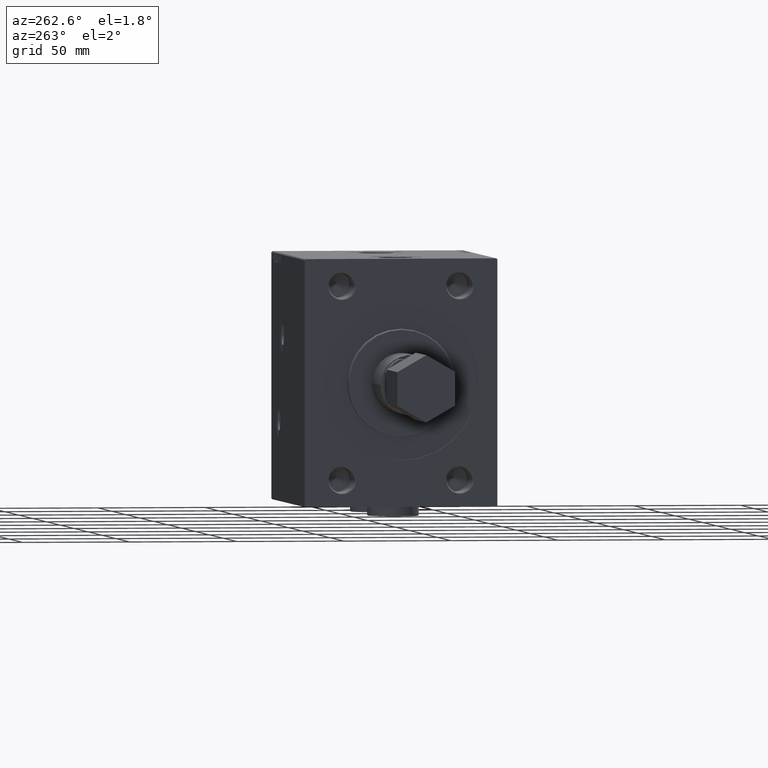
[diagram: clean part render]
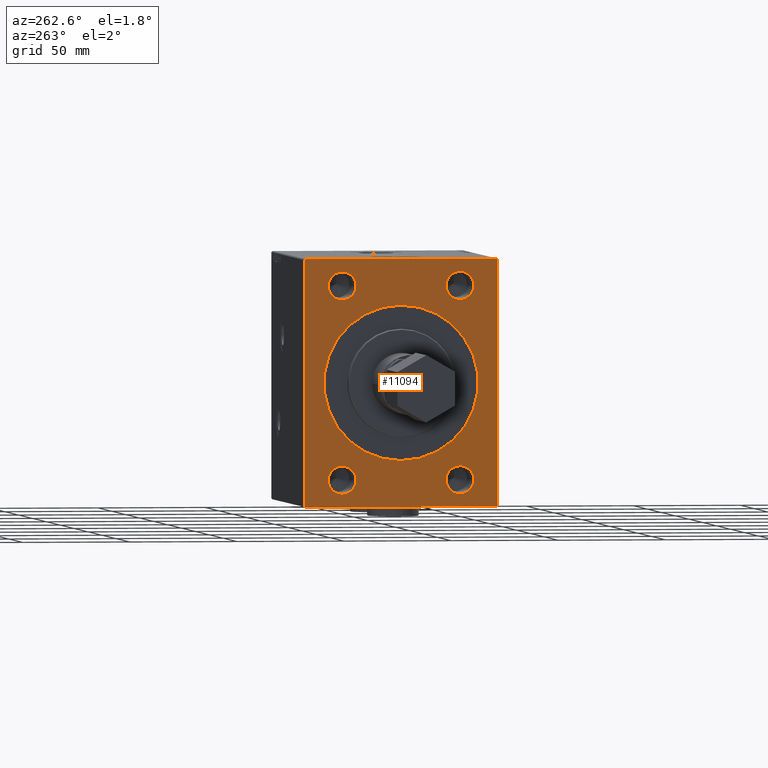
[diagram: same view with one face highlighted and labeled with its STEP entity id]
A machine part, auxiliary view. The second image highlights one B-rep face of the part: STEP entity #11094.
In plain terms, the highlighted planar face has unit normal (-1, 0, 0).
Its self-contained STEP definition (entity closure, byte-faithful):
#583 = EDGE_LOOP ( 'NONE', ( #24999, #40530, #45335, #30705, #43411, #26980, #19381, #1732 ) ) ;
#952 = DIRECTION ( 'NONE',  ( 0.000000000000000000, 0.000000000000000000, -1.000000000000000000 ) ) ;
#1057 = CARTESIAN_POINT ( 'NONE',  ( 119.7000000000000028, -27.50000000000000000, -45.00000000000000000 ) ) ;
#1490 = DIRECTION ( 'NONE',  ( 0.000000000000000000, -1.000000000000000000, -1.541976423090495633E-16 ) ) ;
#1493 = VERTEX_POINT ( 'NONE', #17157 ) ;
#1732 = ORIENTED_EDGE ( 'NONE', *, *, #10821, .T. ) ;
#1862 = CIRCLE ( 'NONE', #19166, 6.499999999999950262 ) ;
#1934 = FACE_BOUND ( 'NONE', #21140, .T. ) ;
#2305 = DIRECTION ( 'NONE',  ( 1.000000000000000000, -0.000000000000000000, -0.000000000000000000 ) ) ;
#2330 = CIRCLE ( 'NONE', #21236, 6.499999999999950262 ) ;
#2425 = CIRCLE ( 'NONE', #6381, 6.499999999999950262 ) ;
#2454 = ORIENTED_EDGE ( 'NONE', *, *, #14264, .F. ) ;
#2711 = EDGE_LOOP ( 'NONE', ( #16657, #13394 ) ) ;
#2944 = AXIS2_PLACEMENT_3D ( 'NONE', #1057, #15618, #11432 ) ;
#3553 = AXIS2_PLACEMENT_3D ( 'NONE', #26866, #34504, #952 ) ;
#3835 = VECTOR ( 'NONE', #1490, 1000.000000000000000 ) ;
#4262 = CARTESIAN_POINT ( 'NONE',  ( 119.7000000000000028, 27.50000000000000000, 51.49999999999994316 ) ) ;
#4370 = EDGE_CURVE ( 'NONE', #18049, #39554, #38457, .T. ) ;
#4397 = VECTOR ( 'NONE', #27446, 1000.000000000000000 ) ;
#4408 = EDGE_CURVE ( 'NONE', #1493, #33120, #27836, .T. ) ;
#4543 = EDGE_LOOP ( 'NONE', ( #39542, #22067 ) ) ;
#4545 = VERTEX_POINT ( 'NONE', #45062 ) ;
#4891 = DIRECTION ( 'NONE',  ( -0.000000000000000000, 0.7071067811865474617, -0.7071067811865474617 ) ) ;
#5547 = VECTOR ( 'NONE', #36978, 999.9999999999998863 ) ;
#5584 = DIRECTION ( 'NONE',  ( 1.000000000000000000, 0.000000000000000000, 0.000000000000000000 ) ) ;
#5653 = FACE_BOUND ( 'NONE', #4543, .T. ) ;
#5699 = VERTEX_POINT ( 'NONE', #41560 ) ;
#5712 = EDGE_LOOP ( 'NONE', ( #34544, #45901 ) ) ;
#6381 = AXIS2_PLACEMENT_3D ( 'NONE', #12585, #23693, #11845 ) ;
#6382 = CARTESIAN_POINT ( 'NONE',  ( 119.7000000000000028, 0.000000000000000000, 0.000000000000000000 ) ) ;
#6600 = VERTEX_POINT ( 'NONE', #30133 ) ;
#7234 = DIRECTION ( 'NONE',  ( 1.000000000000000000, -0.000000000000000000, -0.000000000000000000 ) ) ;
#7793 = AXIS2_PLACEMENT_3D ( 'NONE', #41899, #27335, #19913 ) ;
#8276 = EDGE_CURVE ( 'NONE', #34200, #6600, #45492, .T. ) ;
#8322 = CARTESIAN_POINT ( 'NONE',  ( 119.7000000000000028, 27.50000000000000000, -38.50000000000005684 ) ) ;
#8660 = CARTESIAN_POINT ( 'NONE',  ( 119.7000000000000028, 44.99999999999998579, 57.50000000000000000 ) ) ;
#9492 = VECTOR ( 'NONE', #4891, 1000.000000000000114 ) ;
#9706 = VERTEX_POINT ( 'NONE', #29413 ) ;
#10073 = FACE_OUTER_BOUND ( 'NONE', #583, .T. ) ;
#10821 = EDGE_CURVE ( 'NONE', #33120, #12278, #45369, .T. ) ;
#10854 = CARTESIAN_POINT ( 'NONE',  ( 119.7000000000000028, 51.00000000000000000, 51.00000000000000000 ) ) ;
#10923 = DIRECTION ( 'NONE',  ( 0.000000000000000000, 0.000000000000000000, -1.000000000000000000 ) ) ;
#11094 = ADVANCED_FACE ( 'NONE', ( #24398, #39450, #13769, #1934, #5653, #10073 ), #25121, .T. ) ;
#11421 = CARTESIAN_POINT ( 'NONE',  ( 119.7000000000000028, -27.50000000000000000, -51.49999999999995026 ) ) ;
#11432 = DIRECTION ( 'NONE',  ( 0.000000000000000000, 0.000000000000000000, -1.000000000000000000 ) ) ;
#11845 = DIRECTION ( 'NONE',  ( 0.000000000000000000, 0.000000000000000000, -1.000000000000000000 ) ) ;
#12278 = VERTEX_POINT ( 'NONE', #47275 ) ;
#12541 = CIRCLE ( 'NONE', #44054, 36.00000000000000000 ) ;
#12544 = EDGE_CURVE ( 'NONE', #5699, #28756, #2330, .T. ) ;
#12585 = CARTESIAN_POINT ( 'NONE',  ( 119.7000000000000028, -27.50000000000000000, 45.00000000000000000 ) ) ;
#12877 = CARTESIAN_POINT ( 'NONE',  ( 119.7000000000000028, -45.00000000000000000, -57.50000000000001421 ) ) ;
#13050 = DIRECTION ( 'NONE',  ( 0.000000000000000000, 0.000000000000000000, -1.000000000000000000 ) ) ;
#13124 = VECTOR ( 'NONE', #16234, 1000.000000000000000 ) ;
#13394 = ORIENTED_EDGE ( 'NONE', *, *, #44739, .F. ) ;
#13769 = FACE_BOUND ( 'NONE', #2711, .T. ) ;
#14222 = EDGE_CURVE ( 'NONE', #42868, #1493, #37219, .T. ) ;
#14264 = EDGE_CURVE ( 'NONE', #22179, #37176, #18899, .T. ) ;
#14313 = EDGE_CURVE ( 'NONE', #39554, #29517, #19674, .T. ) ;
#14772 = EDGE_CURVE ( 'NONE', #28756, #5699, #26805, .T. ) ;
#15225 = AXIS2_PLACEMENT_3D ( 'NONE', #33565, #37508, #19475 ) ;
#15618 = DIRECTION ( 'NONE',  ( 1.000000000000000000, -0.000000000000000000, -0.000000000000000000 ) ) ;
#15782 = DIRECTION ( 'NONE',  ( 1.000000000000000000, 0.000000000000000000, 0.000000000000000000 ) ) ;
#15919 = EDGE_CURVE ( 'NONE', #6600, #34200, #12541, .T. ) ;
#16234 = DIRECTION ( 'NONE',  ( 0.000000000000000000, 0.000000000000000000, -1.000000000000000000 ) ) ;
#16657 = ORIENTED_EDGE ( 'NONE', *, *, #30052, .F. ) ;
#16712 = CARTESIAN_POINT ( 'NONE',  ( 119.7000000000000028, 45.00000000000000000, -57.50000000000001421 ) ) ;
#16965 = DIRECTION ( 'NONE',  ( 1.000000000000000000, 0.000000000000000000, 0.000000000000000000 ) ) ;
#17157 = CARTESIAN_POINT ( 'NONE',  ( 119.7000000000000028, 45.00000000000000000, -57.00000000000001421 ) ) ;
#17696 = DIRECTION ( 'NONE',  ( 0.000000000000000000, 0.000000000000000000, -1.000000000000000000 ) ) ;
#18049 = VERTEX_POINT ( 'NONE', #18794 ) ;
#18376 = LINE ( 'NONE', #26282, #46153 ) ;
#18794 = CARTESIAN_POINT ( 'NONE',  ( 119.7000000000000028, -45.00000000000000000, 57.00000000000001421 ) ) ;
#18899 = CIRCLE ( 'NONE', #7793, 6.499999999999950262 ) ;
#19166 = AXIS2_PLACEMENT_3D ( 'NONE', #36099, #2305, #45187 ) ;
#19323 = EDGE_CURVE ( 'NONE', #9706, #43589, #2425, .T. ) ;
#19381 = ORIENTED_EDGE ( 'NONE', *, *, #4408, .T. ) ;
#19475 = DIRECTION ( 'NONE',  ( 0.000000000000000000, 0.000000000000000000, -1.000000000000000000 ) ) ;
#19674 = LINE ( 'NONE', #42142, #9492 ) ;
#19913 = DIRECTION ( 'NONE',  ( 0.000000000000000000, 0.000000000000000000, -1.000000000000000000 ) ) ;
#21005 = LINE ( 'NONE', #12877, #4397 ) ;
#21140 = EDGE_LOOP ( 'NONE', ( #42340, #36752 ) ) ;
#21236 = AXIS2_PLACEMENT_3D ( 'NONE', #44235, #7234, #10923 ) ;
#21577 = CARTESIAN_POINT ( 'NONE',  ( 119.7000000000000028, 44.99999999999998579, 57.00000000000000000 ) ) ;
#21925 = CARTESIAN_POINT ( 'NONE',  ( 119.7000000000000028, 50.99999999999938893, -51.00000000000080291 ) ) ;
#21937 = EDGE_LOOP ( 'NONE', ( #30988, #2454 ) ) ;
#22067 = ORIENTED_EDGE ( 'NONE', *, *, #15919, .F. ) ;
#22179 = VERTEX_POINT ( 'NONE', #24861 ) ;
#22956 = VERTEX_POINT ( 'NONE', #46000 ) ;
#23693 = DIRECTION ( 'NONE',  ( 1.000000000000000000, -0.000000000000000000, -0.000000000000000000 ) ) ;
#23702 = LINE ( 'NONE', #8660, #3835 ) ;
#24398 = FACE_BOUND ( 'NONE', #21937, .T. ) ;
#24861 = CARTESIAN_POINT ( 'NONE',  ( 119.7000000000000028, 27.50000000000000000, 38.50000000000005684 ) ) ;
#24999 = ORIENTED_EDGE ( 'NONE', *, *, #46467, .T. ) ;
#25121 = PLANE ( 'NONE',  #47960 ) ;
#25553 = DIRECTION ( 'NONE',  ( 0.000000000000000000, -0.7071067811865474617, -0.7071067811865474617 ) ) ;
#26151 = EDGE_CURVE ( 'NONE', #37176, #22179, #1862, .T. ) ;
#26282 = CARTESIAN_POINT ( 'NONE',  ( 119.7000000000000028, -51.00000000000000711, 51.00000000000000711 ) ) ;
#26688 = AXIS2_PLACEMENT_3D ( 'NONE', #46719, #46485, #28467 ) ;
#26805 = CIRCLE ( 'NONE', #26688, 6.499999999999950262 ) ;
#26866 = CARTESIAN_POINT ( 'NONE',  ( 119.7000000000000028, -27.50000000000000000, 45.00000000000000000 ) ) ;
#26980 = ORIENTED_EDGE ( 'NONE', *, *, #14222, .T. ) ;
#27335 = DIRECTION ( 'NONE',  ( 1.000000000000000000, -0.000000000000000000, -0.000000000000000000 ) ) ;
#27446 = DIRECTION ( 'NONE',  ( 0.000000000000000000, 1.000000000000000000, 0.000000000000000000 ) ) ;
#27836 = LINE ( 'NONE', #16712, #39120 ) ;
#28467 = DIRECTION ( 'NONE',  ( 0.000000000000000000, 0.000000000000000000, -1.000000000000000000 ) ) ;
#28756 = VERTEX_POINT ( 'NONE', #8322 ) ;
#28773 = CARTESIAN_POINT ( 'NONE',  ( 119.7000000000000028, -44.50000000000002842, -57.50000000000001421 ) ) ;
#29413 = CARTESIAN_POINT ( 'NONE',  ( 119.7000000000000028, -27.50000000000000000, 38.50000000000004974 ) ) ;
#29517 = VERTEX_POINT ( 'NONE', #28773 ) ;
#30052 = EDGE_CURVE ( 'NONE', #4545, #46271, #41263, .T. ) ;
#30095 = DIRECTION ( 'NONE',  ( -0.000000000000000000, -0.7071067811865474617, 0.7071067811865474617 ) ) ;
#30133 = CARTESIAN_POINT ( 'NONE',  ( 119.7000000000000028, 4.408728476930470856E-15, 36.00000000000000000 ) ) ;
#30705 = ORIENTED_EDGE ( 'NONE', *, *, #14313, .T. ) ;
#30818 = CARTESIAN_POINT ( 'NONE',  ( 119.7000000000000028, -45.00000000000000000, 57.49999999999998579 ) ) ;
#30988 = ORIENTED_EDGE ( 'NONE', *, *, #26151, .F. ) ;
#32123 = AXIS2_PLACEMENT_3D ( 'NONE', #47013, #5584, #46533 ) ;
#33120 = VERTEX_POINT ( 'NONE', #21577 ) ;
#33565 = CARTESIAN_POINT ( 'NONE',  ( 119.7000000000000028, -27.50000000000000000, -45.00000000000000000 ) ) ;
#33693 = CIRCLE ( 'NONE', #2944, 6.499999999999950262 ) ;
#33753 = CARTESIAN_POINT ( 'NONE',  ( 119.7000000000000028, 44.49999999999995737, -57.50000000000001421 ) ) ;
#34200 = VERTEX_POINT ( 'NONE', #41003 ) ;
#34504 = DIRECTION ( 'NONE',  ( 1.000000000000000000, -0.000000000000000000, -0.000000000000000000 ) ) ;
#34544 = ORIENTED_EDGE ( 'NONE', *, *, #34663, .F. ) ;
#34663 = EDGE_CURVE ( 'NONE', #43589, #9706, #48433, .T. ) ;
#35237 = DIRECTION ( 'NONE',  ( 0.000000000000000000, -1.206764157201257045E-16, 1.000000000000000000 ) ) ;
#36099 = CARTESIAN_POINT ( 'NONE',  ( 119.7000000000000028, 27.50000000000000000, 45.00000000000000000 ) ) ;
#36714 = EDGE_CURVE ( 'NONE', #22956, #18049, #18376, .T. ) ;
#36752 = ORIENTED_EDGE ( 'NONE', *, *, #12544, .F. ) ;
#36946 = VECTOR ( 'NONE', #30095, 1000.000000000000114 ) ;
#36978 = DIRECTION ( 'NONE',  ( -0.000000000000000000, 0.7071067811865574537, 0.7071067811865376918 ) ) ;
#37176 = VERTEX_POINT ( 'NONE', #4262 ) ;
#37219 = LINE ( 'NONE', #21925, #5547 ) ;
#37227 = EDGE_CURVE ( 'NONE', #29517, #42868, #21005, .T. ) ;
#37508 = DIRECTION ( 'NONE',  ( 1.000000000000000000, -0.000000000000000000, -0.000000000000000000 ) ) ;
#38457 = LINE ( 'NONE', #30818, #13124 ) ;
#39120 = VECTOR ( 'NONE', #35237, 1000.000000000000000 ) ;
#39450 = FACE_BOUND ( 'NONE', #5712, .T. ) ;
#39542 = ORIENTED_EDGE ( 'NONE', *, *, #8276, .F. ) ;
#39554 = VERTEX_POINT ( 'NONE', #42848 ) ;
#40530 = ORIENTED_EDGE ( 'NONE', *, *, #36714, .T. ) ;
#41003 = CARTESIAN_POINT ( 'NONE',  ( 119.7000000000000028, 0.000000000000000000, -36.00000000000000000 ) ) ;
#41263 = CIRCLE ( 'NONE', #15225, 6.499999999999950262 ) ;
#41560 = CARTESIAN_POINT ( 'NONE',  ( 119.7000000000000028, 27.50000000000000000, -51.49999999999994316 ) ) ;
#41899 = CARTESIAN_POINT ( 'NONE',  ( 119.7000000000000028, 27.50000000000000000, 45.00000000000000000 ) ) ;
#42142 = CARTESIAN_POINT ( 'NONE',  ( 119.7000000000000028, -51.00000000000001421, -51.00000000000001421 ) ) ;
#42340 = ORIENTED_EDGE ( 'NONE', *, *, #14772, .F. ) ;
#42438 = CARTESIAN_POINT ( 'NONE',  ( 119.7000000000000028, 0.000000000000000000, 0.000000000000000000 ) ) ;
#42848 = CARTESIAN_POINT ( 'NONE',  ( 119.7000000000000028, -45.00000000000000000, -57.00000000000004263 ) ) ;
#42868 = VERTEX_POINT ( 'NONE', #33753 ) ;
#43411 = ORIENTED_EDGE ( 'NONE', *, *, #37227, .T. ) ;
#43589 = VERTEX_POINT ( 'NONE', #47705 ) ;
#44054 = AXIS2_PLACEMENT_3D ( 'NONE', #42438, #15782, #13050 ) ;
#44235 = CARTESIAN_POINT ( 'NONE',  ( 119.7000000000000028, 27.50000000000000000, -45.00000000000000000 ) ) ;
#44739 = EDGE_CURVE ( 'NONE', #46271, #4545, #33693, .T. ) ;
#45062 = CARTESIAN_POINT ( 'NONE',  ( 119.7000000000000028, -27.50000000000000000, -38.50000000000004974 ) ) ;
#45187 = DIRECTION ( 'NONE',  ( 0.000000000000000000, 0.000000000000000000, -1.000000000000000000 ) ) ;
#45335 = ORIENTED_EDGE ( 'NONE', *, *, #4370, .T. ) ;
#45369 = LINE ( 'NONE', #10854, #36946 ) ;
#45492 = CIRCLE ( 'NONE', #32123, 36.00000000000000000 ) ;
#45901 = ORIENTED_EDGE ( 'NONE', *, *, #19323, .F. ) ;
#46000 = CARTESIAN_POINT ( 'NONE',  ( 119.7000000000000028, -44.50000000000000000, 57.49999999999998579 ) ) ;
#46153 = VECTOR ( 'NONE', #25553, 1000.000000000000114 ) ;
#46271 = VERTEX_POINT ( 'NONE', #11421 ) ;
#46467 = EDGE_CURVE ( 'NONE', #12278, #22956, #23702, .T. ) ;
#46485 = DIRECTION ( 'NONE',  ( 1.000000000000000000, -0.000000000000000000, -0.000000000000000000 ) ) ;
#46533 = DIRECTION ( 'NONE',  ( 0.000000000000000000, 0.000000000000000000, -1.000000000000000000 ) ) ;
#46719 = CARTESIAN_POINT ( 'NONE',  ( 119.7000000000000028, 27.50000000000000000, -45.00000000000000000 ) ) ;
#47013 = CARTESIAN_POINT ( 'NONE',  ( 119.7000000000000028, 0.000000000000000000, 0.000000000000000000 ) ) ;
#47275 = CARTESIAN_POINT ( 'NONE',  ( 119.7000000000000028, 44.50000000000001421, 57.50000000000000000 ) ) ;
#47705 = CARTESIAN_POINT ( 'NONE',  ( 119.7000000000000028, -27.50000000000000000, 51.49999999999995026 ) ) ;
#47960 = AXIS2_PLACEMENT_3D ( 'NONE', #6382, #16965, #17696 ) ;
#48433 = CIRCLE ( 'NONE', #3553, 6.499999999999950262 ) ;